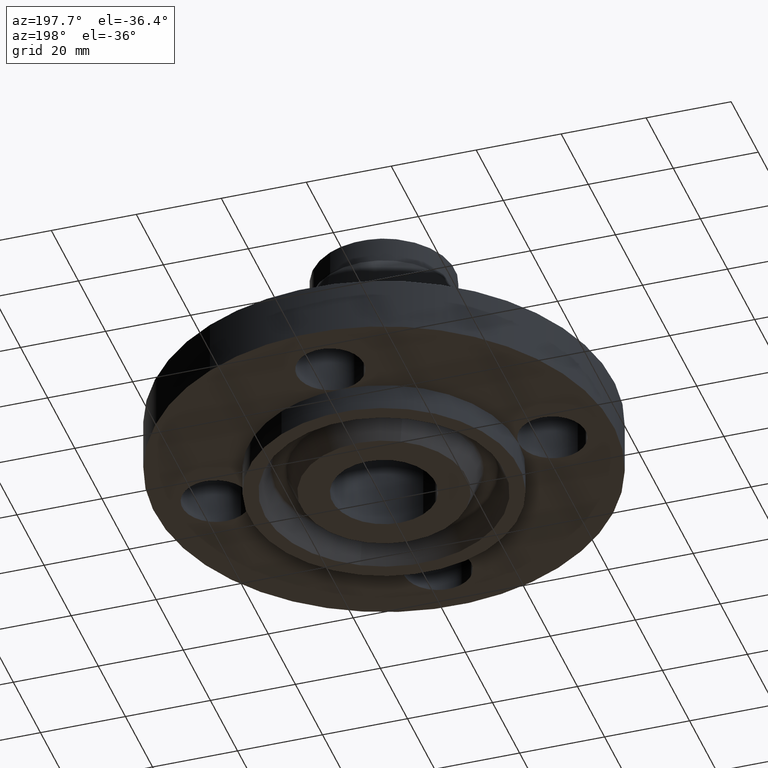
[diagram: clean part render]
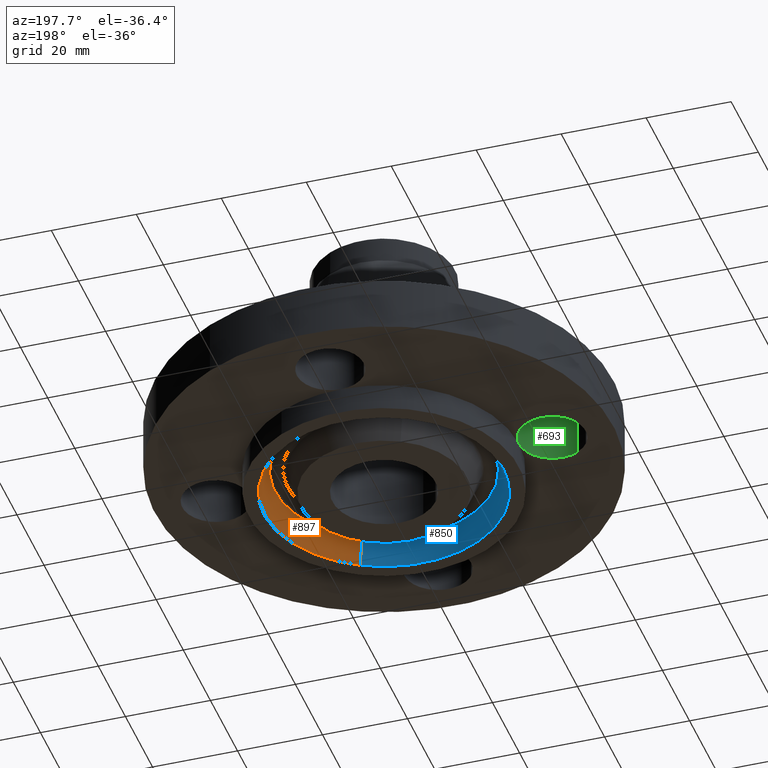
[diagram: same view with three faces highlighted in distinct colors, each labeled with its STEP entity id]
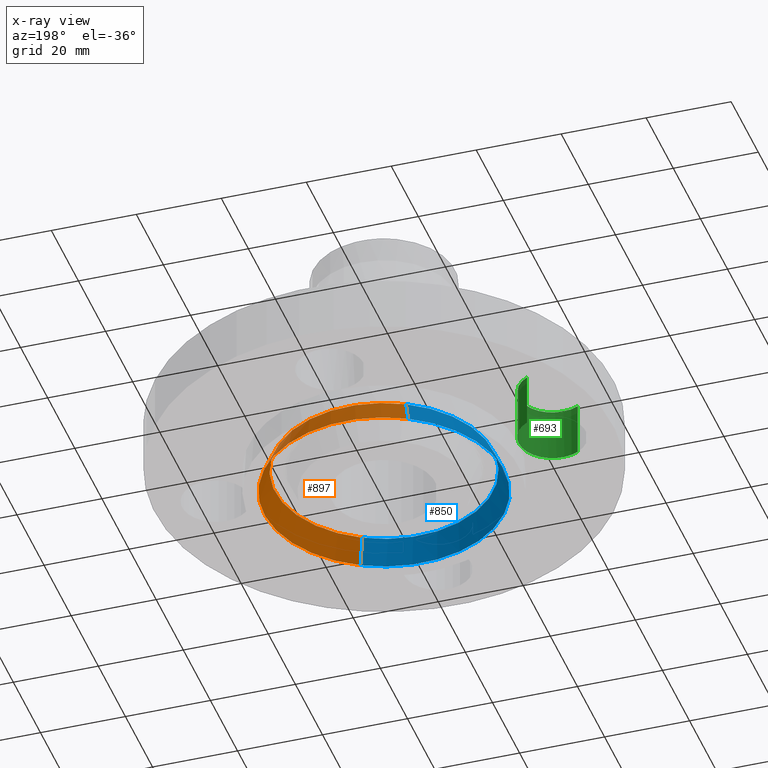
[diagram: x-ray of the same camera — body ghosted, the three highlighted faces saturated]
A machine part, auxiliary view with three faces highlighted in distinct colors.
The next image is the same camera in x-ray (body ghosted, the three faces saturated) — at least one of them is partly hidden behind the body in this view.
Their STEP definitions:

[orange] entity #897 — the highlighted conical surface has half-angle 23 deg.
#758=AXIS2_PLACEMENT_3D('Circle Axis2P3D',#756,#757,$) ;
#832=AXIS2_PLACEMENT_3D('Cone Axis2P3D',#829,#830,#831) ;
#853=AXIS2_PLACEMENT_3D('Circle Axis2P3D',#851,#852,$) ;
#751=CARTESIAN_POINT('Vertex',(0.531862706891,-0.973568154601,-0.250000000001)) ;
#753=CARTESIAN_POINT('Vertex',(-0.531862706891,0.973568154601,-0.250000000001)) ;
#756=CARTESIAN_POINT('Axis2P3D Location',(6.99353086378E-017,3.49676543189E-016,-0.250000000001)) ;
#798=CARTESIAN_POINT('Vertex',(-0.484861336716,0.887532723592,-0.0190396522348)) ;
#800=CARTESIAN_POINT('Vertex',(0.484861336716,-0.887532723592,-0.0190396522348)) ;
#829=CARTESIAN_POINT('Axis2P3D Location',(0.,0.,-0.0190396522348)) ;
#834=CARTESIAN_POINT('Line Origine',(-0.508362021804,0.930550439096,-0.134519826118)) ;
#839=CARTESIAN_POINT('Line Origine',(0.508362021804,-0.930550439096,-0.134519826118)) ;
#851=CARTESIAN_POINT('Axis2P3D Location',(0.,0.,-0.0190396522348)) ;
#757=DIRECTION('Axis2P3D Direction',(0.,0.,-0.0393700787402)) ;
#830=DIRECTION('Axis2P3D Direction',(-0.,-0.,-0.0393700787402)) ;
#831=DIRECTION('Axis2P3D XDirection',(-0.0188750212049,0.0345504945626,0.)) ;
#835=DIRECTION('Vector Direction',(-0.00737505833565,0.0134999537303,-0.0362403485611)) ;
#840=DIRECTION('Vector Direction',(0.00737505833565,-0.0134999537303,-0.0362403485611)) ;
#852=DIRECTION('Axis2P3D Direction',(0.,0.,0.0393700787402)) ;
#836=VECTOR('Line Direction',#835,0.0393700787402) ;
#841=VECTOR('Line Direction',#840,0.0393700787402) ;
#892=ORIENTED_EDGE('',*,*,#760,.T.) ;
#893=ORIENTED_EDGE('',*,*,#843,.T.) ;
#894=ORIENTED_EDGE('',*,*,#855,.T.) ;
#895=ORIENTED_EDGE('',*,*,#838,.F.) ;
#897=ADVANCED_FACE('PartBody',(#896),#833,.F.) ;
#759=CIRCLE('generated circle',#758,1.109375) ;
#854=CIRCLE('generated circle',#853,1.01133814883) ;
#833=CONICAL_SURFACE('Cone',#832,1.01133814883,0.401425727959) ;
#760=EDGE_CURVE('',#754,#752,#759,.T.) ;
#838=EDGE_CURVE('',#754,#799,#837,.F.) ;
#843=EDGE_CURVE('',#752,#801,#842,.F.) ;
#855=EDGE_CURVE('',#801,#799,#854,.T.) ;
#891=EDGE_LOOP('',(#892,#893,#894,#895)) ;
#896=FACE_OUTER_BOUND('',#891,.T.) ;
#837=LINE('Line',#834,#836) ;
#842=LINE('Line',#839,#841) ;
#752=VERTEX_POINT('',#751) ;
#754=VERTEX_POINT('',#753) ;
#799=VERTEX_POINT('',#798) ;
#801=VERTEX_POINT('',#800) ;

[blue] entity #850 — the highlighted conical surface has half-angle 23 deg.
#749=AXIS2_PLACEMENT_3D('Circle Axis2P3D',#747,#748,$) ;
#796=AXIS2_PLACEMENT_3D('Circle Axis2P3D',#794,#795,$) ;
#832=AXIS2_PLACEMENT_3D('Cone Axis2P3D',#829,#830,#831) ;
#747=CARTESIAN_POINT('Axis2P3D Location',(1.04902962957E-016,2.09805925913E-016,-0.250000000001)) ;
#751=CARTESIAN_POINT('Vertex',(0.531862706891,-0.973568154601,-0.250000000001)) ;
#753=CARTESIAN_POINT('Vertex',(-0.531862706891,0.973568154601,-0.250000000001)) ;
#794=CARTESIAN_POINT('Axis2P3D Location',(0.,0.,-0.0190396522348)) ;
#798=CARTESIAN_POINT('Vertex',(-0.484861336716,0.887532723592,-0.0190396522348)) ;
#800=CARTESIAN_POINT('Vertex',(0.484861336716,-0.887532723592,-0.0190396522348)) ;
#829=CARTESIAN_POINT('Axis2P3D Location',(0.,0.,-0.0190396522348)) ;
#834=CARTESIAN_POINT('Line Origine',(-0.508362021804,0.930550439096,-0.134519826118)) ;
#839=CARTESIAN_POINT('Line Origine',(0.508362021804,-0.930550439096,-0.134519826118)) ;
#748=DIRECTION('Axis2P3D Direction',(0.,0.,-0.0393700787402)) ;
#795=DIRECTION('Axis2P3D Direction',(0.,0.,0.0393700787402)) ;
#830=DIRECTION('Axis2P3D Direction',(-0.,-0.,-0.0393700787402)) ;
#831=DIRECTION('Axis2P3D XDirection',(-0.0188750212049,0.0345504945626,0.)) ;
#835=DIRECTION('Vector Direction',(-0.00737505833565,0.0134999537303,-0.0362403485611)) ;
#840=DIRECTION('Vector Direction',(0.00737505833565,-0.0134999537303,-0.0362403485611)) ;
#836=VECTOR('Line Direction',#835,0.0393700787402) ;
#841=VECTOR('Line Direction',#840,0.0393700787402) ;
#845=ORIENTED_EDGE('',*,*,#755,.T.) ;
#846=ORIENTED_EDGE('',*,*,#838,.T.) ;
#847=ORIENTED_EDGE('',*,*,#802,.T.) ;
#848=ORIENTED_EDGE('',*,*,#843,.F.) ;
#850=ADVANCED_FACE('PartBody',(#849),#833,.F.) ;
#750=CIRCLE('generated circle',#749,1.109375) ;
#797=CIRCLE('generated circle',#796,1.01133814883) ;
#833=CONICAL_SURFACE('Cone',#832,1.01133814883,0.401425727959) ;
#755=EDGE_CURVE('',#752,#754,#750,.T.) ;
#802=EDGE_CURVE('',#799,#801,#797,.T.) ;
#838=EDGE_CURVE('',#754,#799,#837,.F.) ;
#843=EDGE_CURVE('',#752,#801,#842,.F.) ;
#844=EDGE_LOOP('',(#845,#846,#847,#848)) ;
#849=FACE_OUTER_BOUND('',#844,.T.) ;
#837=LINE('Line',#834,#836) ;
#842=LINE('Line',#839,#841) ;
#752=VERTEX_POINT('',#751) ;
#754=VERTEX_POINT('',#753) ;
#799=VERTEX_POINT('',#798) ;
#801=VERTEX_POINT('',#800) ;

[green] entity #693 — the highlighted cylindrical surface (edge-blend (fillet) strip) has radius 7.874 mm, axis along (0, 0, -1).
#568=AXIS2_PLACEMENT_3D('Circle Axis2P3D',#566,#567,$) ;
#582=AXIS2_PLACEMENT_3D('Circle Axis2P3D',#580,#581,$) ;
#653=AXIS2_PLACEMENT_3D('Cylinder Axis2P3D',#650,#651,#652) ;
#683=AXIS2_PLACEMENT_3D('Circle Axis2P3D',#681,#682,$) ;
#457=CARTESIAN_POINT('Vertex',(-1.25000000001,0.,0.)) ;
#566=CARTESIAN_POINT('Axis2P3D Location',(-1.56000000001,-1.39870617276E-016,0.)) ;
#570=CARTESIAN_POINT('Vertex',(-1.41137808304,0.272050594187,0.)) ;
#577=CARTESIAN_POINT('Vertex',(-1.70862191697,-0.272050594187,0.)) ;
#580=CARTESIAN_POINT('Axis2P3D Location',(-1.56000000001,-1.39870617276E-016,0.)) ;
#650=CARTESIAN_POINT('Axis2P3D Location',(-1.56000000001,-2.86567351002E-016,0.496062992128)) ;
#655=CARTESIAN_POINT('Line Origine',(-1.70862191697,-0.272050594187,0.250000000001)) ;
#659=CARTESIAN_POINT('Vertex',(-1.70862191697,-0.272050594187,0.500000000002)) ;
#662=CARTESIAN_POINT('Line Origine',(-1.41137808304,0.272050594187,0.250000000001)) ;
#666=CARTESIAN_POINT('Vertex',(-1.41137808304,0.272050594187,0.500000000002)) ;
#681=CARTESIAN_POINT('Axis2P3D Location',(-1.56000000001,-2.86567351002E-016,0.500000000002)) ;
#567=DIRECTION('Axis2P3D Direction',(0.,0.,-0.0393700787402)) ;
#581=DIRECTION('Axis2P3D Direction',(0.,0.,-0.0393700787402)) ;
#651=DIRECTION('Axis2P3D Direction',(0.,0.,-0.0393700787402)) ;
#652=DIRECTION('Axis2P3D XDirection',(0.0188750212049,0.0345504945626,0.)) ;
#656=DIRECTION('Vector Direction',(0.,0.,-0.0393700787402)) ;
#663=DIRECTION('Vector Direction',(0.,0.,-0.0393700787402)) ;
#682=DIRECTION('Axis2P3D Direction',(0.,0.,-0.0393700787402)) ;
#657=VECTOR('Line Direction',#656,0.0393700787402) ;
#664=VECTOR('Line Direction',#663,0.0393700787402) ;
#687=ORIENTED_EDGE('',*,*,#668,.F.) ;
#688=ORIENTED_EDGE('',*,*,#572,.T.) ;
#689=ORIENTED_EDGE('',*,*,#584,.T.) ;
#690=ORIENTED_EDGE('',*,*,#661,.T.) ;
#691=ORIENTED_EDGE('',*,*,#685,.F.) ;
#693=ADVANCED_FACE('PartBody',(#692),#654,.F.) ;
#569=CIRCLE('generated circle',#568,0.310000000001) ;
#583=CIRCLE('generated circle',#582,0.310000000001) ;
#684=CIRCLE('generated circle',#683,0.310000000001) ;
#654=CYLINDRICAL_SURFACE('generated cylinder',#653,0.310000000001) ;
#572=EDGE_CURVE('',#571,#458,#569,.T.) ;
#584=EDGE_CURVE('',#458,#578,#583,.T.) ;
#661=EDGE_CURVE('',#578,#660,#658,.F.) ;
#668=EDGE_CURVE('',#571,#667,#665,.F.) ;
#685=EDGE_CURVE('',#667,#660,#684,.T.) ;
#686=EDGE_LOOP('',(#687,#688,#689,#690,#691)) ;
#692=FACE_OUTER_BOUND('',#686,.T.) ;
#658=LINE('Line',#655,#657) ;
#665=LINE('Line',#662,#664) ;
#458=VERTEX_POINT('',#457) ;
#571=VERTEX_POINT('',#570) ;
#578=VERTEX_POINT('',#577) ;
#660=VERTEX_POINT('',#659) ;
#667=VERTEX_POINT('',#666) ;